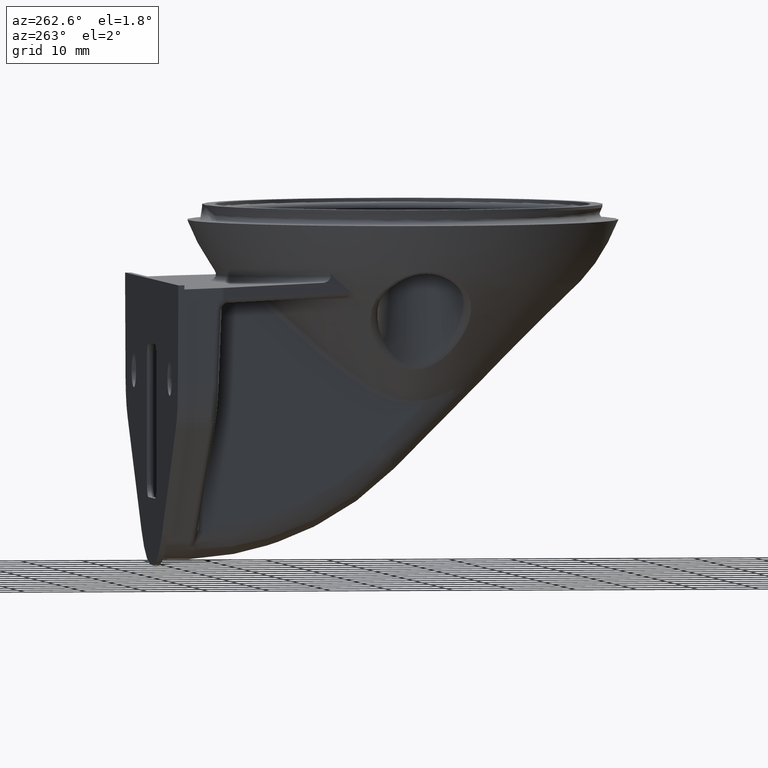
[diagram: clean part render]
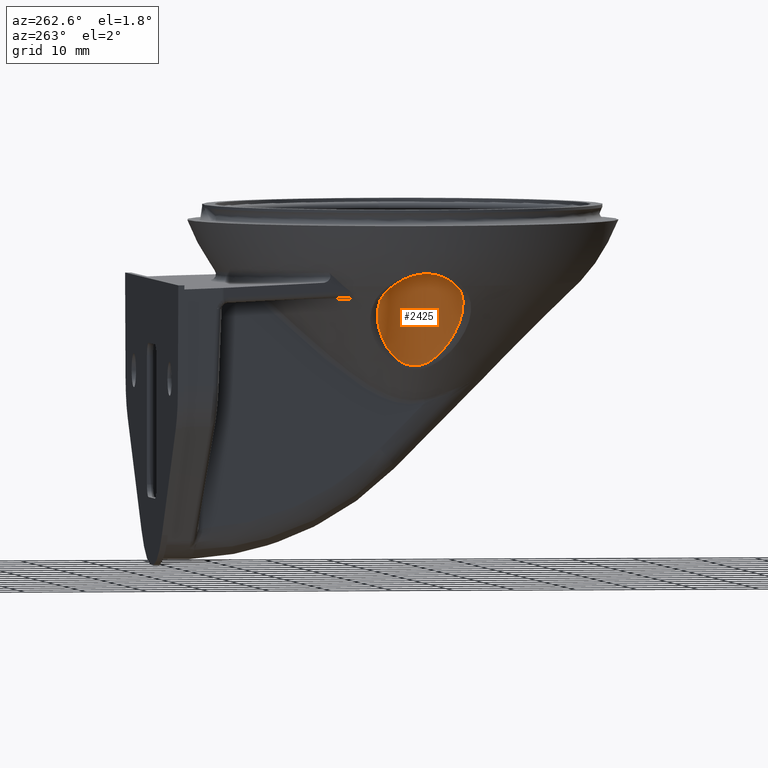
[diagram: same view with one face highlighted and labeled with its STEP entity id]
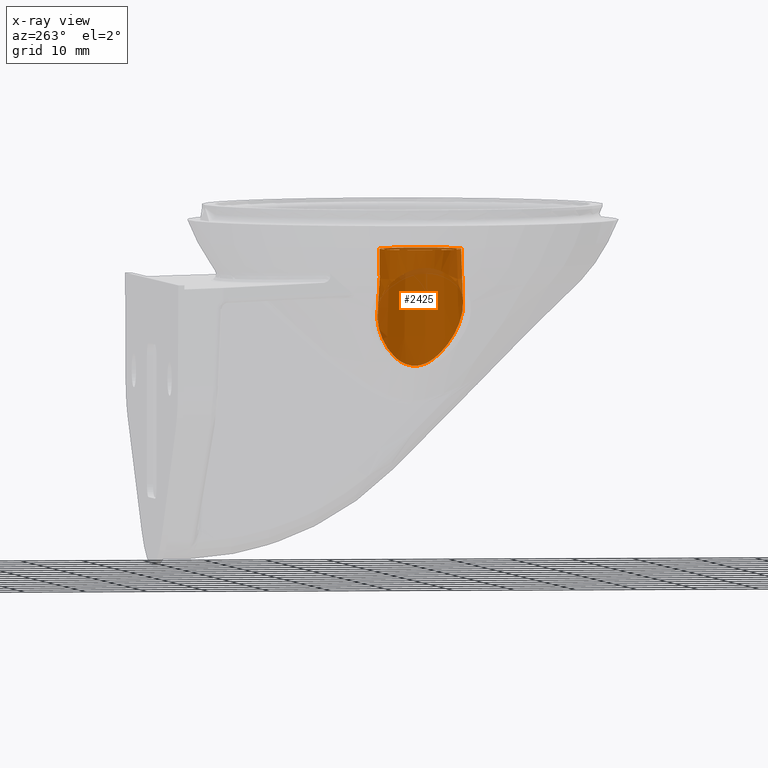
[diagram: x-ray of the same camera — body ghosted, the highlighted face saturated]
A machine part, auxiliary view. The second image highlights one B-rep face of the part: STEP entity #2425.
The next image is the same camera in x-ray: the body ghosted, the highlighted face saturated — about 4% of this face is hidden behind the body in this view.
In plain terms, the highlighted conical surface has half-angle 2 deg.
Its self-contained STEP definition (entity closure, byte-faithful):
#103=CONICAL_SURFACE('',#3044,6.6,2.);
#233=B_SPLINE_CURVE_WITH_KNOTS('',3,(#5682,#5683,#5684,#5685,#5686,#5687,
#5688,#5689,#5690,#5691,#5692,#5693,#5694,#5695,#5696,#5697,#5698,#5699,
#5700,#5701,#5702,#5703,#5704,#5705,#5706,#5707,#5708,#5709,#5710,#5711,
#5712,#5713,#5714,#5715,#5716,#5717,#5718,#5719,#5720,#5721,#5722,#5723,
#5724,#5725,#5726,#5727,#5728,#5729,#5730,#5731,#5732,#5733,#5734,#5735,
#5736,#5737,#5738,#5739),.UNSPECIFIED.,.F.,.F.,(4,2,2,2,2,2,2,2,2,2,2,2,
2,2,2,2,2,2,2,2,2,2,2,2,2,2,2,2,4),(0.,0.0312499999999999,0.0624999999999998,
0.125,0.15625,0.1875,0.25,0.28125,0.3125,0.34375,0.375,0.40625,0.421875,
0.4375,0.46875,0.5,0.53125,0.5625,0.578125,0.59375,0.625,0.6875,0.75,0.8125,
0.84375,0.875,0.90625,0.9375,1.),.UNSPECIFIED.);
#234=B_SPLINE_CURVE_WITH_KNOTS('',3,(#5742,#5743,#5744,#5745,#5746,#5747,
#5748,#5749,#5750,#5751,#5752,#5753,#5754,#5755,#5756,#5757,#5758,#5759,
#5760,#5761,#5762,#5763,#5764,#5765,#5766,#5767),.UNSPECIFIED.,.F.,.F.,(4,
2,2,2,2,2,2,2,2,2,2,2,4),(0.,0.125,0.25,0.3125,0.375,0.4375,0.5,0.5625,0.625,
0.75,0.8125,0.875,1.),.UNSPECIFIED.);
#367=CIRCLE('',#3043,6.61685102610601);
#721=EDGE_LOOP('',(#1209));
#722=EDGE_LOOP('',(#1210,#1211));
#1209=ORIENTED_EDGE('',*,*,#1916,.T.);
#1210=ORIENTED_EDGE('',*,*,#1917,.T.);
#1211=ORIENTED_EDGE('',*,*,#1918,.T.);
#1916=EDGE_CURVE('',#2856,#2856,#367,.T.);
#1917=EDGE_CURVE('',#2857,#2858,#233,.T.);
#1918=EDGE_CURVE('',#2858,#2857,#234,.T.);
#2425=ADVANCED_FACE('',(#2606,#2607),#103,.F.);
#2606=FACE_BOUND('',#721,.T.);
#2607=FACE_BOUND('',#722,.T.);
#2856=VERTEX_POINT('',#5681);
#2857=VERTEX_POINT('',#5740);
#2858=VERTEX_POINT('',#5741);
#3043=AXIS2_PLACEMENT_3D('',#5680,#3553,#3554);
#3044=AXIS2_PLACEMENT_3D('',#5768,#3555,#3556);
#3553=DIRECTION('',(0.,0.,1.));
#3554=DIRECTION('',(-1.,0.,0.));
#3555=DIRECTION('',(0.,0.,-1.));
#3556=DIRECTION('',(-1.,0.,-8.35593124699476E-016));
#5680=CARTESIAN_POINT('',(-22.5000487211144,-2.05277703803919,22.5017078146576));
#5681=CARTESIAN_POINT('',(-29.1168997472204,-2.05277703803919,22.5017078146576));
#5682=CARTESIAN_POINT('',(-26.9053453003321,3.12631697751984,17.2787958211267));
#5683=CARTESIAN_POINT('',(-26.6244930127595,3.37691468354923,17.0234352209663));
#5684=CARTESIAN_POINT('',(-26.3338875752051,3.59572569437602,16.7558938766047));
#5685=CARTESIAN_POINT('',(-25.7376027099364,3.97945973376537,16.1985966577096));
#5686=CARTESIAN_POINT('',(-25.4306385305967,4.14483374977536,15.9076062776877));
#5687=CARTESIAN_POINT('',(-24.4997855128925,4.56362556282476,15.0104154819709));
#5688=CARTESIAN_POINT('',(-23.8759814228959,4.73788884166008,14.3898590619507));
#5689=CARTESIAN_POINT('',(-22.9429517599639,4.87397837157198,13.4257613994263));
#5690=CARTESIAN_POINT('',(-22.6311192109216,4.89805845934556,13.0974810240745));
#5691=CARTESIAN_POINT('',(-22.0151256663078,4.90550230470121,12.4357701741171));
#5692=CARTESIAN_POINT('',(-21.7122023726109,4.8890470220184,12.1037284930763));
#5693=CARTESIAN_POINT('',(-20.8185314543148,4.78392501276044,11.1033834299166));
#5694=CARTESIAN_POINT('',(-20.2428097142336,4.64029959450789,10.4307956808586));
#5695=CARTESIAN_POINT('',(-19.4103806514441,4.31771880692016,9.41193787570965));
#5696=CARTESIAN_POINT('',(-19.1386953865172,4.1921637538952,9.07130221442374));
#5697=CARTESIAN_POINT('',(-18.6145221602389,3.90830167073985,8.39793328741828));
#5698=CARTESIAN_POINT('',(-18.3609261057989,3.74961725207102,8.06385145965123));
#5699=CARTESIAN_POINT('',(-17.8707767686388,3.39697194664377,7.40178884802825));
#5700=CARTESIAN_POINT('',(-17.6342150977458,3.20306196965746,7.07378721203239));
#5701=CARTESIAN_POINT('',(-17.1788367385948,2.77518093824735,6.42590873337974));
#5702=CARTESIAN_POINT('',(-16.9588432111594,2.53975113957493,6.10421051974045));
#5703=CARTESIAN_POINT('',(-16.5459109154116,2.02841499794393,5.4845546099961));
#5704=CARTESIAN_POINT('',(-16.3525990972953,1.75275032190372,5.1861374941004));
#5705=CARTESIAN_POINT('',(-16.0850199784023,1.30015532849956,4.76297022899058));
#5706=CARTESIAN_POINT('',(-15.9995815004904,1.1427121884312,4.62603745269187));
#5707=CARTESIAN_POINT('',(-15.8371413967429,0.811869788038219,4.36260486026147));
#5708=CARTESIAN_POINT('',(-15.7598953395142,0.637696794386675,4.23568341136235));
#5709=CARTESIAN_POINT('',(-15.5476142286198,0.0973456693249333,3.88317834146111));
#5710=CARTESIAN_POINT('',(-15.4298971579244,-0.288523246125806,3.6823324840805));
#5711=CARTESIAN_POINT('',(-15.2603410860269,-1.13903632965073,3.38992871513883));
#5712=CARTESIAN_POINT('',(-15.2136733401918,-1.58222144620026,3.30772140146499));
#5713=CARTESIAN_POINT('',(-15.2121074395771,-2.49998644436387,3.3049792308668));
#5714=CARTESIAN_POINT('',(-15.2573587758519,-2.94416828550709,3.38471275201074));
#5715=CARTESIAN_POINT('',(-15.4242380200179,-3.79566376140504,3.6726423712271));
#5716=CARTESIAN_POINT('',(-15.5409756519847,-4.18290350454551,3.87197258290022));
#5717=CARTESIAN_POINT('',(-15.7524742726408,-4.72579528227465,4.22344455101958));
#5718=CARTESIAN_POINT('',(-15.8293659929897,-4.90042598274569,4.3498833436634));
#5719=CARTESIAN_POINT('',(-15.9912523630127,-5.23235415914244,4.6126312825013));
#5720=CARTESIAN_POINT('',(-16.0766017482158,-5.39061844525613,4.74953926874154));
#5721=CARTESIAN_POINT('',(-16.3444959463579,-5.84618890534355,5.17354255423079));
#5722=CARTESIAN_POINT('',(-16.5396822340609,-6.12557811598217,5.4750559306987));
#5723=CARTESIAN_POINT('',(-17.1609852337666,-6.89694752146829,6.40784707213563));
#5724=CARTESIAN_POINT('',(-17.6161953275003,-7.31831787774776,7.05754670995481));
#5725=CARTESIAN_POINT('',(-18.5996219578481,-8.02793359953473,8.38663043016307));
#5726=CARTESIAN_POINT('',(-19.1314619915331,-8.31483840965035,9.07041453910244));
#5727=CARTESIAN_POINT('',(-20.2370546079137,-8.74396983005615,10.423889522411));
#5728=CARTESIAN_POINT('',(-20.8139493217857,-8.88902185907033,11.0982842459273));
#5729=CARTESIAN_POINT('',(-21.7159041901762,-8.9949955628746,12.1078571973581));
#5730=CARTESIAN_POINT('',(-22.0215511465837,-9.01119793127231,12.4427445466109));
#5731=CARTESIAN_POINT('',(-22.6348469388879,-9.0033446314845,13.1014122000893));
#5732=CARTESIAN_POINT('',(-22.9435696021763,-8.97944549933951,13.4264007090377));
#5733=CARTESIAN_POINT('',(-23.564492792738,-8.88887275321917,14.0679975960676));
#5734=CARTESIAN_POINT('',(-23.8766956717064,-8.82222887644743,14.3846072256363));
#5735=CARTESIAN_POINT('',(-24.5038026289982,-8.64101564167129,15.009583779467));
#5736=CARTESIAN_POINT('',(-24.8193565422634,-8.52583727410819,15.3185068160695));
#5737=CARTESIAN_POINT('',(-25.7449672351073,-8.10808893067521,16.2104113774043));
#5738=CARTESIAN_POINT('',(-26.3421637907782,-7.73438429852204,16.76673174103));
#5739=CARTESIAN_POINT('',(-26.9053453003321,-7.23187105359821,17.2787958211267));
#5740=CARTESIAN_POINT('',(-26.9053453003321,3.12631697751984,17.2787958211267));
#5741=CARTESIAN_POINT('',(-26.9053453003321,-7.23187105359821,17.2787958211267));
#5742=CARTESIAN_POINT('',(-26.9053453003321,-7.23187105359821,17.2787958211267));
#5743=CARTESIAN_POINT('',(-27.2354921368663,-6.93728901332574,17.5789767277773));
#5744=CARTESIAN_POINT('',(-27.5388991371792,-6.61018004976196,17.8661173907218));
#5745=CARTESIAN_POINT('',(-28.0901568285824,-5.88112504809638,18.4041650554221));
#5746=CARTESIAN_POINT('',(-28.3396943827163,-5.47496626258349,18.6569903814009));
#5747=CARTESIAN_POINT('',(-28.6515324509658,-4.81740580484091,18.9805130142713));
#5748=CARTESIAN_POINT('',(-28.7455453800707,-4.58963537633291,19.0794983861162));
#5749=CARTESIAN_POINT('',(-28.9116668594454,-4.11432211822096,19.2561306637579));
#5750=CARTESIAN_POINT('',(-28.9835218503935,-3.86662734486765,19.3335121144766));
#5751=CARTESIAN_POINT('',(-29.0990200359872,-3.36436386817841,19.458684886821));
#5752=CARTESIAN_POINT('',(-29.1433442831971,-3.10806756256526,19.5071929924554));
#5753=CARTESIAN_POINT('',(-29.2033102014435,-2.58421450655105,19.5729722226923));
#5754=CARTESIAN_POINT('',(-29.2187433363546,-2.31445747541575,19.5900061864396));
#5755=CARTESIAN_POINT('',(-29.2184235614047,-1.78270524179843,19.5896539400193));
#5756=CARTESIAN_POINT('',(-29.2031190816001,-1.5188693937107,19.5727617402371));
#5757=CARTESIAN_POINT('',(-29.142984097443,-0.995147952849465,19.5067987314521));
#5758=CARTESIAN_POINT('',(-29.0977680305287,-0.734038602833542,19.4573147067024));
#5759=CARTESIAN_POINT('',(-28.9212461561983,0.0283712088112493,19.2660473751102));
#5760=CARTESIAN_POINT('',(-28.7533710971084,0.498009594410444,19.0861234893765));
#5761=CARTESIAN_POINT('',(-28.4411209156403,1.15507985915424,18.7622397756299));
#5762=CARTESIAN_POINT('',(-28.3259545991344,1.36744214769802,18.6442644108987));
#5763=CARTESIAN_POINT('',(-28.080509731002,1.77007903318874,18.3969456479552));
#5764=CARTESIAN_POINT('',(-27.9501769993194,1.96085484664863,18.2675209675496));
#5765=CARTESIAN_POINT('',(-27.5380197916683,2.50547333397123,17.8652967850766));
#5766=CARTESIAN_POINT('',(-27.2352546990367,2.83194679728215,17.5787608411018));
#5767=CARTESIAN_POINT('',(-26.9053453003321,3.12631697751984,17.2787958211267));
#5768=CARTESIAN_POINT('',(-22.5000487211144,-2.05277703803919,22.9842580663064));